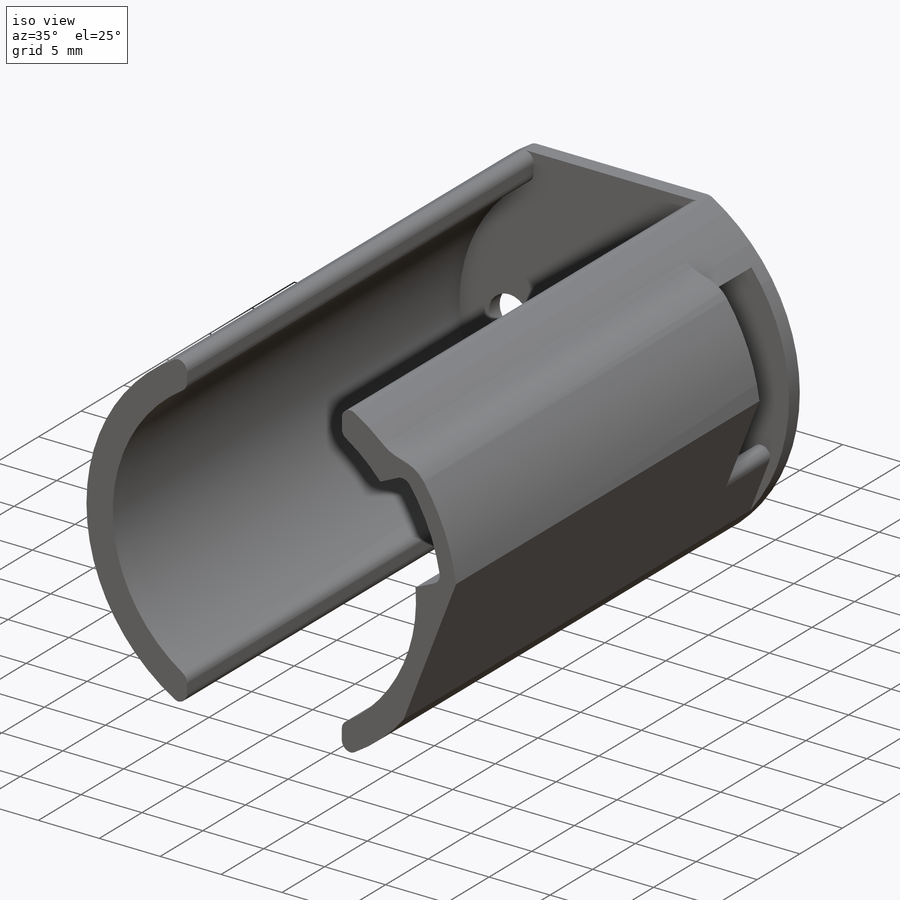
[diagram: iso view]
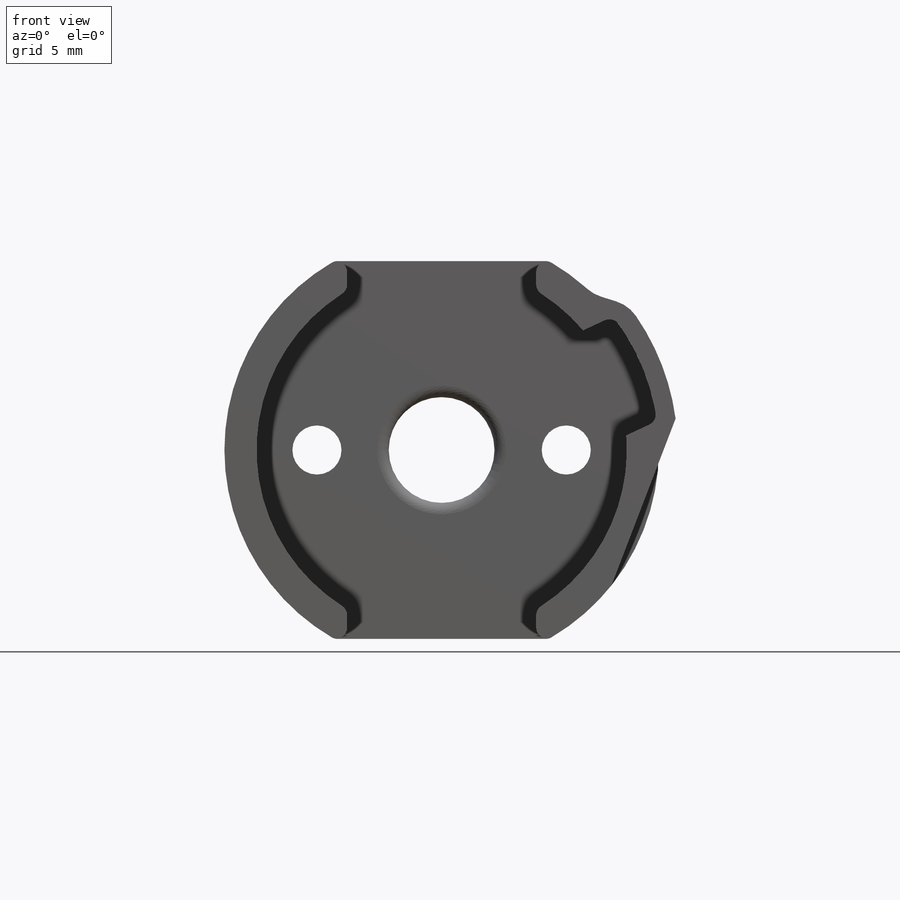
[diagram: front view]
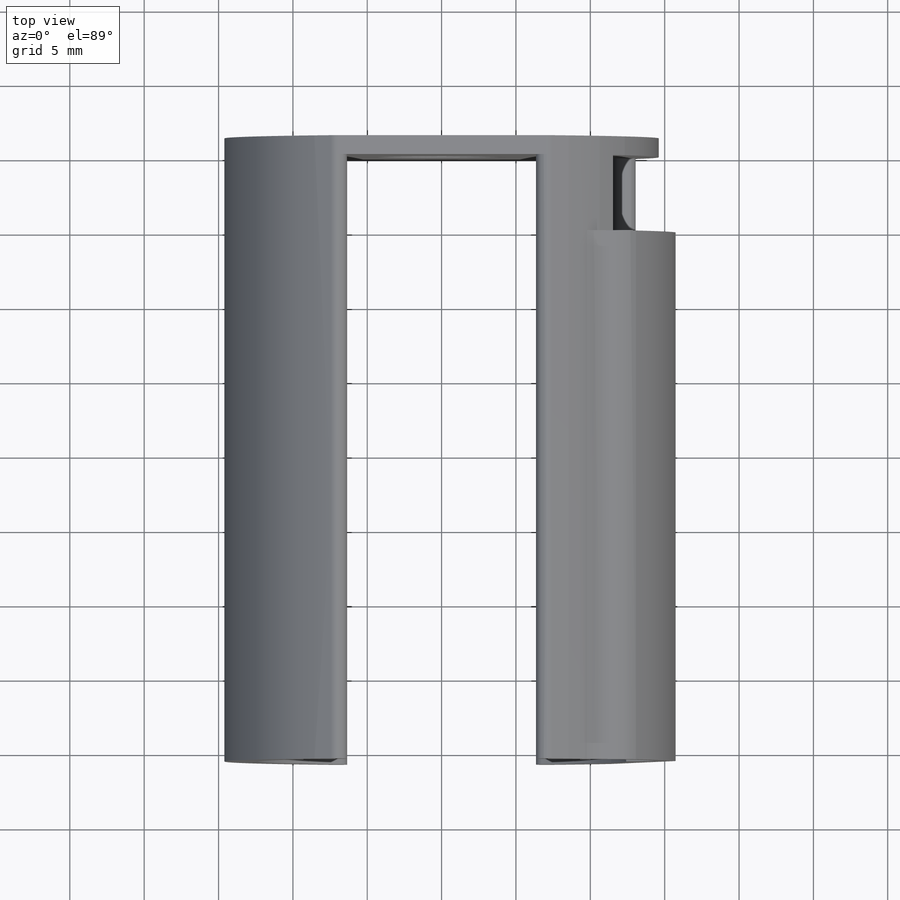
[diagram: top view]
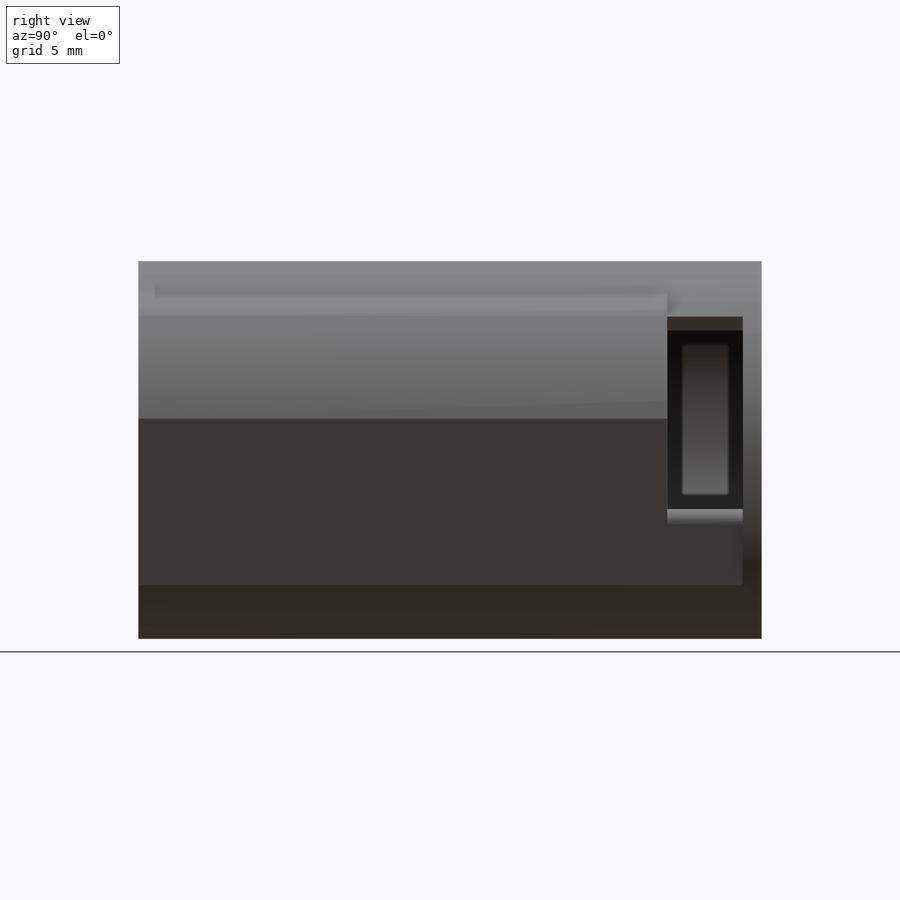
[diagram: right view]
SOLIDWORKS PART (.sldprt)
format: sldprt  version: not decoded by parser v0  size: 380,928 bytes
history: native  units: mm
features: sketch x10, cut_extrude x6, extrude x4, fillet x2, material x1 (+13 scaffold rows collapsed)
feature tree (36):
  scaffold x13  (default folders/planes/origin — collapsed)
  material  "Material <not specified>"
  sketch  "Sketch1"  dims[D1=24.892mm D2=29.21mm]
  extrude  "Boss-Extrude1"  Depth=40.64mm
  sketch  "Sketch2"  dims[D1=7.112mm D4=3.302mm D2=16.764mm D3=8.382mm]
  extrude  "Boss-Extrude2"  Depth=1.27mm
  sketch  "Sketch3"  dims[D1=25.4mm D2=12.7mm]
  cut_extrude  "Cut-Extrude1"  [1 undecoded]
  sketch  "Sketch4"  dims[D1=1.27mm D2=12.7mm D3=6.35mm]
  cut_extrude  "Cut-Extrude2"  [1 undecoded]
  sketch  "Sketch5"  dims[D1=7.62mm]
  cut_extrude  "Cut-Extrude3"  [1 undecoded]
  sketch  "Sketch6"  dims[c1.D2=~2.295572mm c2.D2=80.0deg c2.D3=~2.206521mm c3.D3=40.0deg c3.D4=~8.288922mm c3.D1=1.27mm]
  extrude  "Boss-Extrude3"  [1 undecoded]
  sketch  "Sketch7"
  cut_extrude  "Cut-Extrude4"  Depth=6.35mm
  sketch  "Sketch8"  dims[c1.D1=~2.067929mm c2.D1=60.0deg c2.D2=~2.281707mm c3.D2=30.0deg]
  cut_extrude  "Cut-Extrude5"  Depth=5.08mm
  sketch  "Sketch11"  dims[D1=12.0mm D2=3.175mm]
  cut_extrude  "Cut-Extrude6"  [1 undecoded]
  sketch  "Sketch12"
  extrude  "Boss-Extrude5"  [1 undecoded]
  fillet  "Fillet1"  Radius=0.762mm
  fillet  "Fillet2"  Radius=2.54mm
decode coverage: 14 of 22 modeling features carry decoded parameters
note: ~ marks probable driven/reference dimensions
note: 6 parameter values undecoded
summary: no parameter record found for 6 features
note: suppression state not decoded; provenance and decode notes live in map.json
